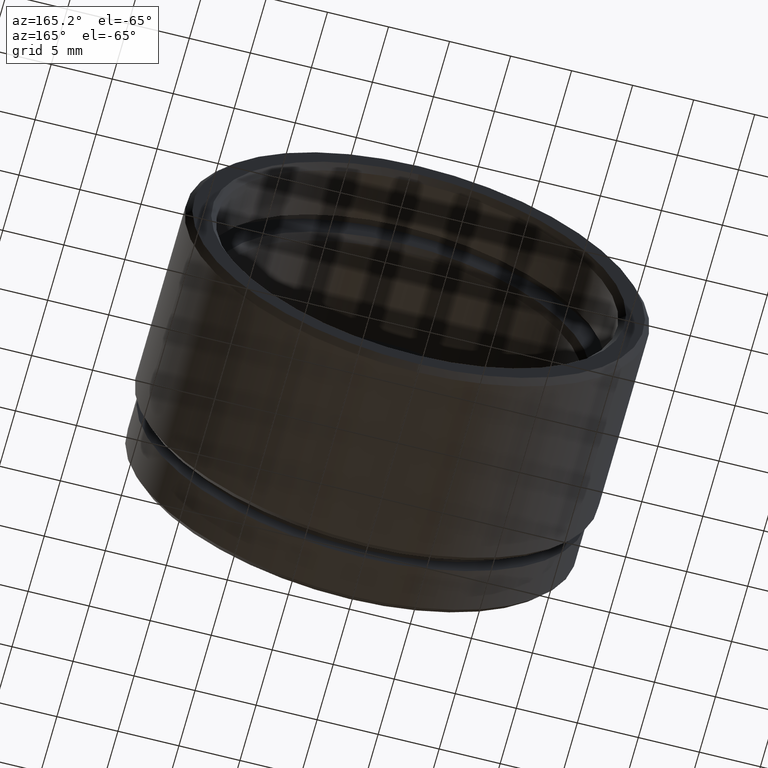
[diagram: clean part render]
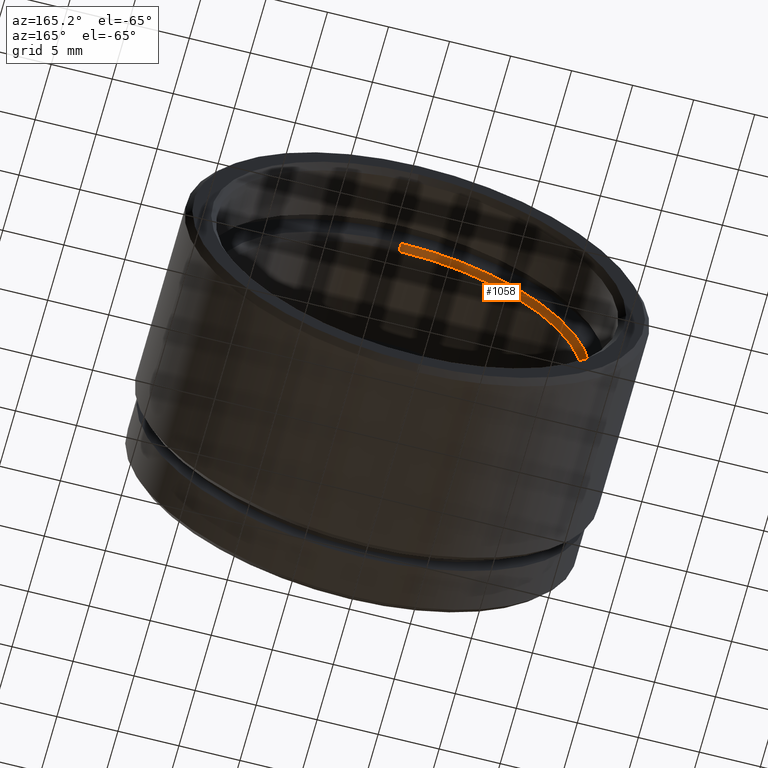
[diagram: same view with one face highlighted and labeled with its STEP entity id]
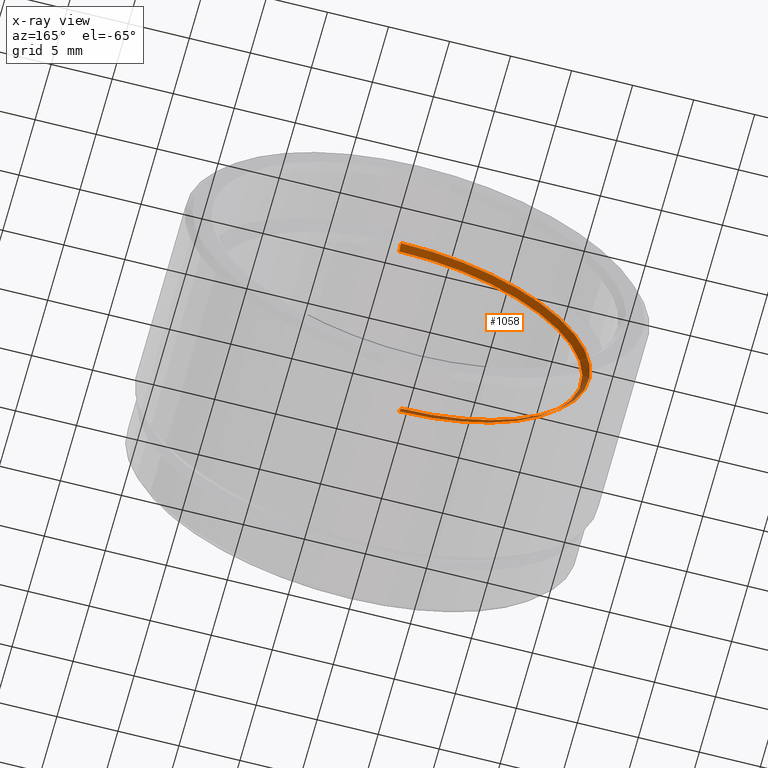
[diagram: x-ray of the same camera — body ghosted, the highlighted face saturated]
A machine part, auxiliary view. The second image highlights one B-rep face of the part: STEP entity #1058.
The next image is the same camera in x-ray: the body ghosted, the highlighted face saturated — about 12% of this face is hidden behind the body in this view.
In plain terms, the highlighted conical surface has half-angle 45 deg.
Its self-contained STEP definition (entity closure, byte-faithful):
#11 = EDGE_CURVE ( 'NONE', #700, #704, #191, .T. ) ;
#76 = CIRCLE ( 'NONE', #838, 15.00000000000000000 ) ;
#94 = DIRECTION ( 'NONE',  ( -0.0000000000000000000, 1.000000000000000000, -0.0000000000000000000 ) ) ;
#96 = CARTESIAN_POINT ( 'NONE',  ( 0.0000000000000000000, 16.00000000000000000, 15.49999999999999800 ) ) ;
#172 = DIRECTION ( 'NONE',  ( -0.0000000000000000000, -1.000000000000000000, -0.0000000000000000000 ) ) ;
#191 = LINE ( 'NONE', #303, #222 ) ;
#222 = VECTOR ( 'NONE', #237, 1000.000000000000000 ) ;
#223 = ORIENTED_EDGE ( 'NONE', *, *, #299, .T. ) ;
#237 = DIRECTION ( 'NONE',  ( 0.0000000000000000000, 0.7071067811865512400, 0.7071067811865439100 ) ) ;
#241 = ORIENTED_EDGE ( 'NONE', *, *, #1015, .F. ) ;
#282 = ORIENTED_EDGE ( 'NONE', *, *, #435, .F. ) ;
#290 = EDGE_LOOP ( 'NONE', ( #241, #223, #282, #306 ) ) ;
#299 = EDGE_CURVE ( 'NONE', #825, #518, #563, .T. ) ;
#303 = CARTESIAN_POINT ( 'NONE',  ( 0.0000000000000000000, 16.00000000000000000, 15.49999999999999800 ) ) ;
#306 = ORIENTED_EDGE ( 'NONE', *, *, #11, .F. ) ;
#323 = DIRECTION ( 'NONE',  ( -0.0000000000000000000, 1.000000000000000000, -0.0000000000000000000 ) ) ;
#342 = DIRECTION ( 'NONE',  ( 0.0000000000000000000, 0.0000000000000000000, 1.000000000000000000 ) ) ;
#374 = DIRECTION ( 'NONE',  ( 0.0000000000000000000, 0.0000000000000000000, 1.000000000000000000 ) ) ;
#435 = EDGE_CURVE ( 'NONE', #704, #518, #795, .T. ) ;
#461 = AXIS2_PLACEMENT_3D ( 'NONE', #692, #172, #685 ) ;
#511 = CARTESIAN_POINT ( 'NONE',  ( 0.0000000000000000000, 15.49999999999999600, 0.0000000000000000000 ) ) ;
#518 = VERTEX_POINT ( 'NONE', #1051 ) ;
#552 = AXIS2_PLACEMENT_3D ( 'NONE', #1109, #94, #374 ) ;
#563 = LINE ( 'NONE', #598, #613 ) ;
#590 = DIRECTION ( 'NONE',  ( 8.659560562354888500E-017, 0.7071067811865512400, -0.7071067811865439100 ) ) ;
#598 = CARTESIAN_POINT ( 'NONE',  ( 1.898202538678397200E-015, 16.00000000000000000, -15.49999999999999800 ) ) ;
#613 = VECTOR ( 'NONE', #590, 1000.000000000000000 ) ;
#685 = DIRECTION ( 'NONE',  ( 0.0000000000000000000, 0.0000000000000000000, 1.000000000000000000 ) ) ;
#692 = CARTESIAN_POINT ( 'NONE',  ( 0.0000000000000000000, 16.00000000000000000, 0.0000000000000000000 ) ) ;
#700 = VERTEX_POINT ( 'NONE', #751 ) ;
#704 = VERTEX_POINT ( 'NONE', #96 ) ;
#751 = CARTESIAN_POINT ( 'NONE',  ( 1.836970198721029600E-015, 15.49999999999999600, 15.00000000000000000 ) ) ;
#795 = CIRCLE ( 'NONE', #461, 15.49999999999999800 ) ;
#825 = VERTEX_POINT ( 'NONE', #1072 ) ;
#838 = AXIS2_PLACEMENT_3D ( 'NONE', #511, #323, #342 ) ;
#958 = FACE_OUTER_BOUND ( 'NONE', #290, .T. ) ;
#1015 = EDGE_CURVE ( 'NONE', #825, #700, #76, .T. ) ;
#1051 = CARTESIAN_POINT ( 'NONE',  ( 1.898202538678397200E-015, 16.00000000000000000, -15.49999999999999800 ) ) ;
#1058 = ADVANCED_FACE ( 'NONE', ( #958 ), #1063, .F. ) ;
#1063 = CONICAL_SURFACE ( 'NONE', #552, 15.49999999999999800, 0.7853981633974431700 ) ;
#1072 = CARTESIAN_POINT ( 'NONE',  ( 0.0000000000000000000, 15.49999999999999600, -15.00000000000000000 ) ) ;
#1109 = CARTESIAN_POINT ( 'NONE',  ( 0.0000000000000000000, 16.00000000000000000, 0.0000000000000000000 ) ) ;